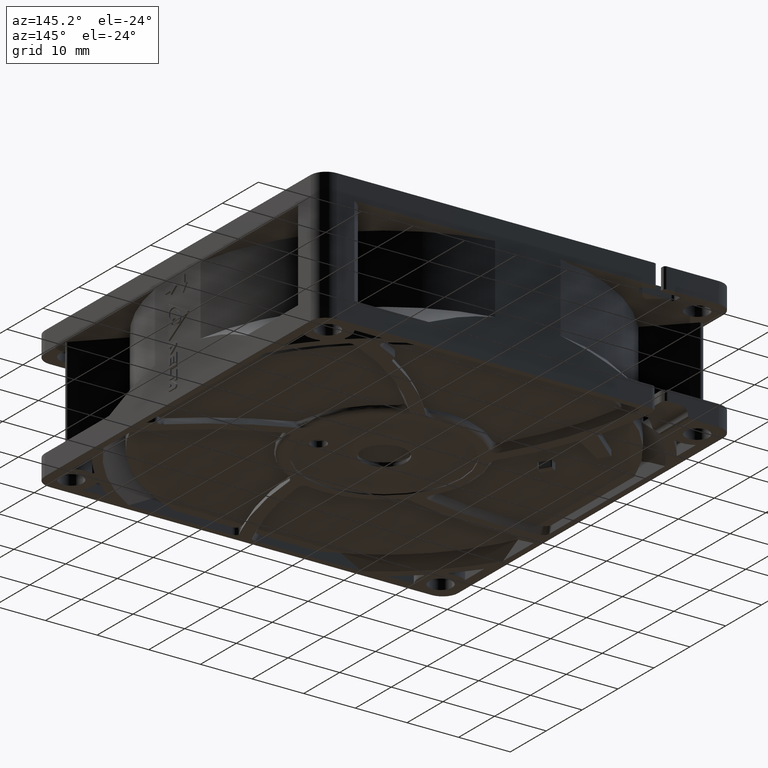
[diagram: clean part render]
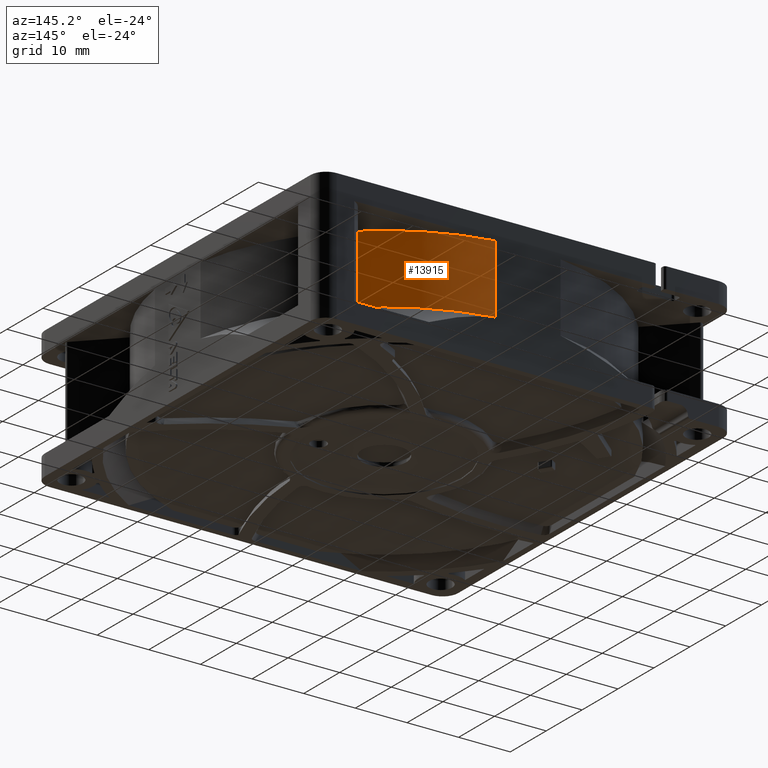
[diagram: same view with one face highlighted and labeled with its STEP entity id]
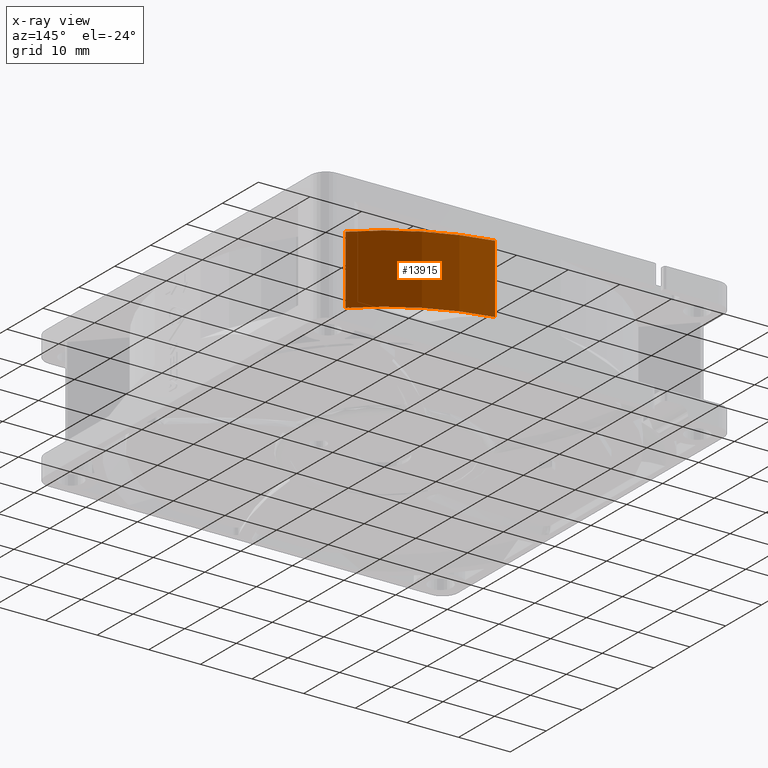
[diagram: x-ray of the same camera — body ghosted, the highlighted face saturated]
A machine part, auxiliary view. The second image highlights one B-rep face of the part: STEP entity #13915.
The next image is the same camera in x-ray: the body ghosted, the highlighted face saturated — about 0% of this face is hidden behind the body in this view.
In plain terms, the highlighted cylindrical surface (partial cylindrical patch) has radius 40.5 mm, axis along (-0, -0, 1).
Its self-contained STEP definition (entity closure, byte-faithful):
#2884 = ORIENTED_EDGE ( 'NONE', *, *, #31239, .T. ) ;
#2925 = CARTESIAN_POINT ( 'NONE',  ( 27.92198681256904500, 29.33620037494155100, -17.27999999999999800 ) ) ;
#5316 = CYLINDRICAL_SURFACE ( 'NONE', #19889, 40.50000000000000000 ) ;
#8003 = CARTESIAN_POINT ( 'NONE',  ( 6.344288770224695300, 40.00000000000000700, -3.999999999999999100 ) ) ;
#9760 = DIRECTION ( 'NONE',  ( 1.000000000000000000, 0.0000000000000000000, 0.0000000000000000000 ) ) ;
#11397 = EDGE_CURVE ( 'NONE', #28222, #34287, #36106, .T. ) ;
#12082 = DIRECTION ( 'NONE',  ( 1.000000000000000000, 0.0000000000000000000, 0.0000000000000000000 ) ) ;
#12533 = DIRECTION ( 'NONE',  ( -0.0000000000000000000, -0.0000000000000000000, 1.000000000000000000 ) ) ;
#13915 = ADVANCED_FACE ( 'NONE', ( #18672 ), #5316, .T. ) ;
#15219 = AXIS2_PLACEMENT_3D ( 'NONE', #35118, #12533, #9760 ) ;
#16637 = LINE ( 'NONE', #35826, #21075 ) ;
#17295 = EDGE_CURVE ( 'NONE', #31061, #28222, #18094, .T. ) ;
#18094 = LINE ( 'NONE', #36529, #35908 ) ;
#18672 = FACE_OUTER_BOUND ( 'NONE', #33158, .T. ) ;
#19680 = ORIENTED_EDGE ( 'NONE', *, *, #11397, .F. ) ;
#19889 = AXIS2_PLACEMENT_3D ( 'NONE', #24238, #25129, #21377 ) ;
#21075 = VECTOR ( 'NONE', #27003, 1000.000000000000000 ) ;
#21377 = DIRECTION ( 'NONE',  ( 1.000000000000000000, 0.0000000000000000000, 0.0000000000000000000 ) ) ;
#24238 = CARTESIAN_POINT ( 'NONE',  ( 0.0000000000000000000, 0.0000000000000000000, 0.0000000000000000000 ) ) ;
#24701 = CIRCLE ( 'NONE', #15219, 40.50000000000000000 ) ;
#24788 = VERTEX_POINT ( 'NONE', #30593 ) ;
#24993 = ORIENTED_EDGE ( 'NONE', *, *, #30482, .T. ) ;
#25129 = DIRECTION ( 'NONE',  ( -0.0000000000000000000, -0.0000000000000000000, 1.000000000000000000 ) ) ;
#26146 = ORIENTED_EDGE ( 'NONE', *, *, #17295, .F. ) ;
#27003 = DIRECTION ( 'NONE',  ( -0.0000000000000000000, -0.0000000000000000000, 1.000000000000000000 ) ) ;
#28062 = DIRECTION ( 'NONE',  ( -0.0000000000000000000, -0.0000000000000000000, 1.000000000000000000 ) ) ;
#28222 = VERTEX_POINT ( 'NONE', #31139 ) ;
#28593 = CARTESIAN_POINT ( 'NONE',  ( 0.0000000000000000000, 0.0000000000000000000, -3.999999999999999100 ) ) ;
#29741 = AXIS2_PLACEMENT_3D ( 'NONE', #28593, #34313, #12082 ) ;
#30482 = EDGE_CURVE ( 'NONE', #31061, #24788, #24701, .T. ) ;
#30593 = CARTESIAN_POINT ( 'NONE',  ( 6.344288770224695300, 40.00000000000000700, -17.27999999999999800 ) ) ;
#31061 = VERTEX_POINT ( 'NONE', #2925 ) ;
#31139 = CARTESIAN_POINT ( 'NONE',  ( 27.92198681256904200, 29.33620037494154400, -3.999999999999999100 ) ) ;
#31239 = EDGE_CURVE ( 'NONE', #24788, #34287, #16637, .T. ) ;
#33158 = EDGE_LOOP ( 'NONE', ( #26146, #24993, #2884, #19680 ) ) ;
#34287 = VERTEX_POINT ( 'NONE', #8003 ) ;
#34313 = DIRECTION ( 'NONE',  ( -0.0000000000000000000, -0.0000000000000000000, 1.000000000000000000 ) ) ;
#35118 = CARTESIAN_POINT ( 'NONE',  ( 0.0000000000000000000, 0.0000000000000000000, -17.27999999999999800 ) ) ;
#35826 = CARTESIAN_POINT ( 'NONE',  ( 6.344288770224695300, 40.00000000000000700, 0.0000000000000000000 ) ) ;
#35908 = VECTOR ( 'NONE', #28062, 1000.000000000000000 ) ;
#36106 = CIRCLE ( 'NONE', #29741, 40.50000000000000000 ) ;
#36529 = CARTESIAN_POINT ( 'NONE',  ( 27.92198681256904200, 29.33620037494154400, -500000.0000000000600 ) ) ;